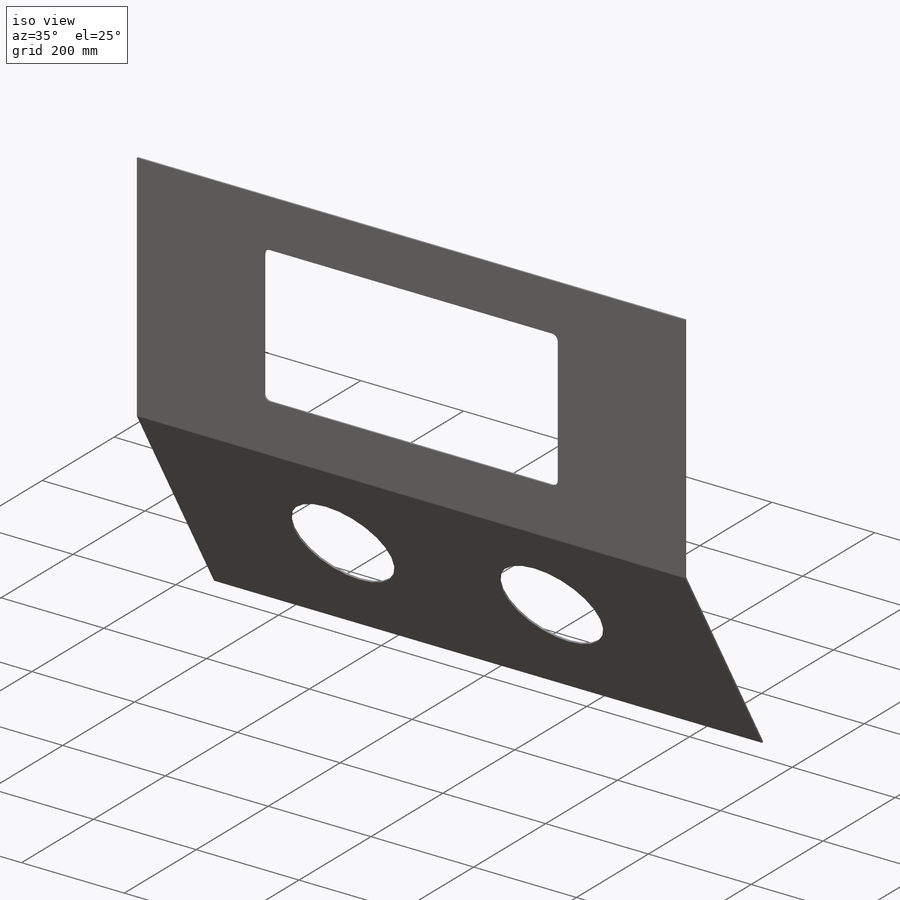
[diagram: iso view]
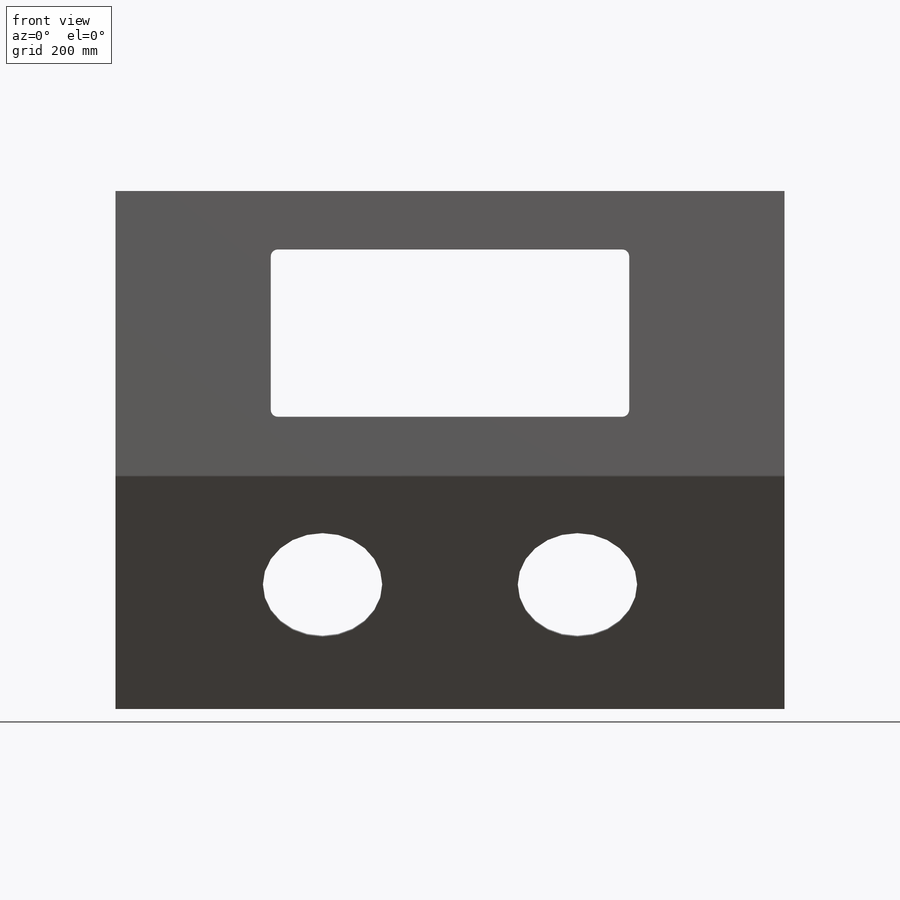
[diagram: front view]
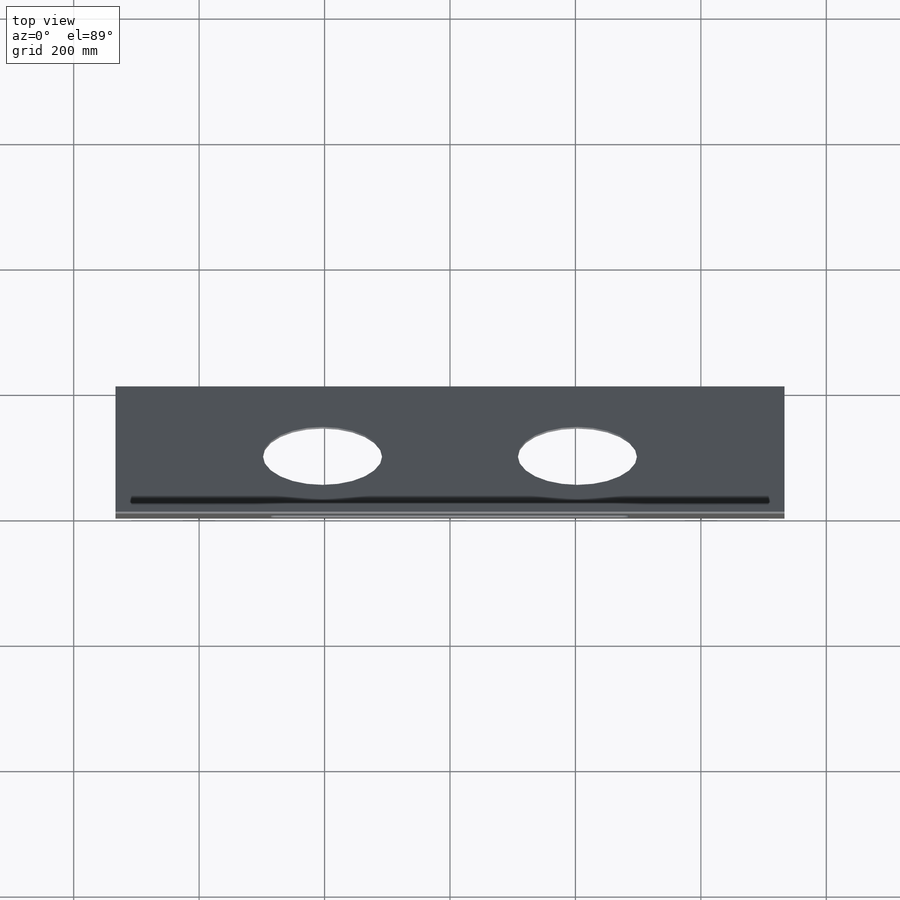
[diagram: top view]
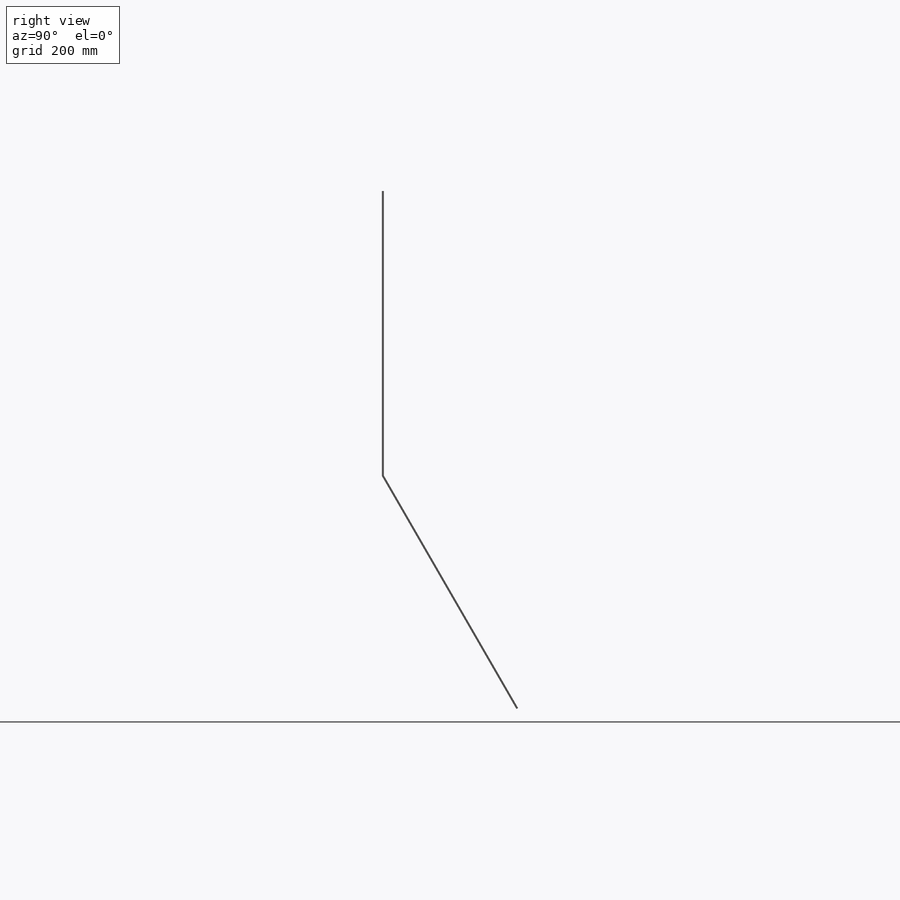
[diagram: right view]
SOLIDWORKS PART (.sldprt)
format: sldprt  version: not decoded by parser v0  size: 263,168 bytes
history: native  units: mm
features: sketch x15, sheet_metal_op x3, cut_extrude x2, material x1, extrude x1 + 3 further entries (+13 scaffold rows collapsed; 3 parser-record rows omitted)
feature tree (41):
  scaffold x13  (default folders/planes/origin — collapsed)
  material  "Material <not specified>"
  sketch  "Sketch1"  dims[D1=1066.8mm D2=896.9375mm]
  extrude  "Boss-Extrude1"  Depth=0.889mm
  sketch  "Sharp-Sketch1"  dims[D1=0.0mm]
  sketch  "Flat-Sketch1"  dims[c1.D1=406.4mm c2.D1=0.889mm c2.D2=500.0mm c2.D3=0.0mm c2.D4=30.0deg c2.D5=1.0 c2.D8=1.5875mm c2.D9=1.5875mm c3.D1=0.889mm c3.D2=500.0mm c3.D3=0.0mm]
  sketch  "Sketch8"  dims[c1.D6=11.1125mm c1.D1=266.7mm c1.D2=571.5mm c1.D3=92.075mm c1.D4=247.65mm c1.D5=~105.999814mm c1.D7=~91.625212mm c2.D5=120.015mm c2.D3=533.4mm]
  cut_extrude  "Cut-Extrude1"  [1 undecoded]
  sketch  "Sketch9"  dims[D1=~212.444831mm D2=228.6mm D3=406.4mm]
  cut_extrude  "Cut-Extrude2"  [1 undecoded]
  sketch  "Sketch10"
  sketch  "Bend-Lines1"
  sketch  "Bounding-Box1"
  sheet_metal_op  "Sheet-Metal2"
  "Flat-Pattern2"
  sketch  "Bend-Lines2"
  sketch  "Bounding-Box2"
  parser-record x3  (decoder bookkeeping rows leaked as tree rows — omitted from the tree; the rows remain in map.json)
  sheet_metal_op  "Sheet-Metal3"
  "Flat-Pattern2"
  sketch  "Bend-Lines2"
  sketch  "Bounding-Box2"
  sheet_metal_op  "Sheet-Metal4"
  "Flat-Pattern2"
  sketch  "Bend-Lines2"
  sketch  "Bounding-Box2"
  sketch  "Sketch10-1"
decode coverage: 6 of 21 modeling features carry decoded parameters; 3 rows unclassified (native names shown)
note: ~ marks probable driven/reference dimensions
note: 2 parameter values undecoded
note: suppression state not decoded; provenance and decode notes live in map.json
